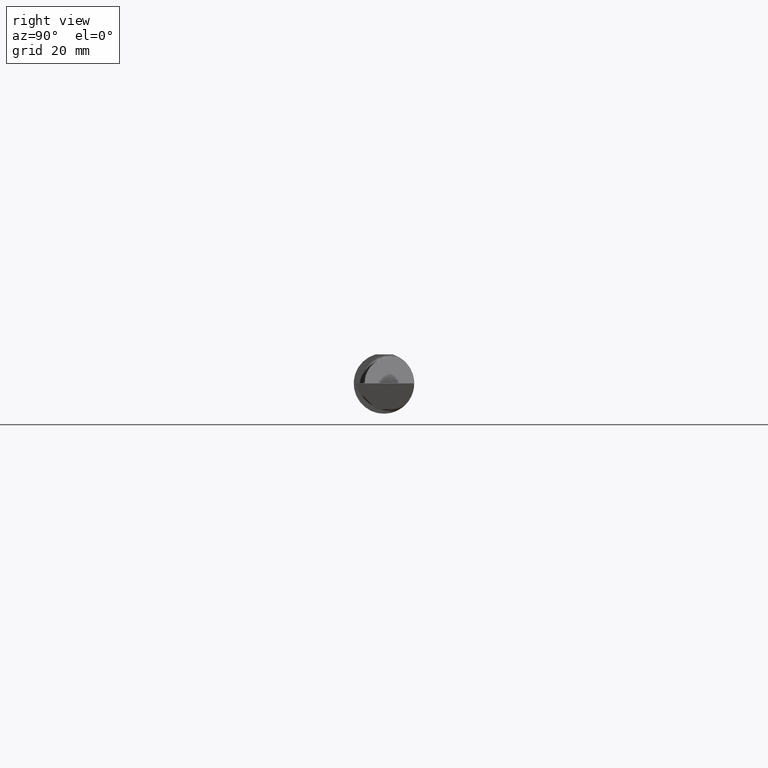
[diagram: clean part render]
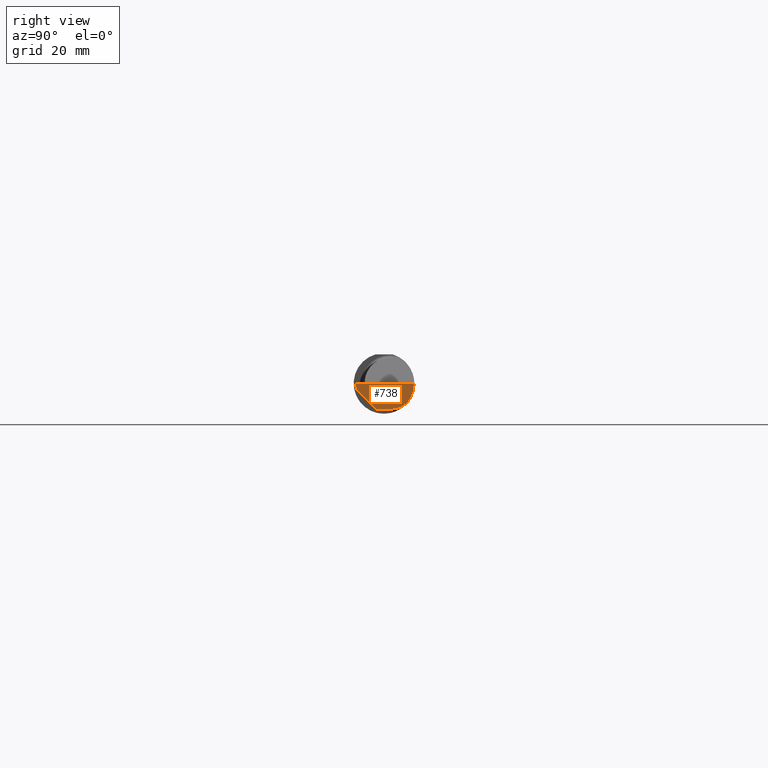
[diagram: same view with one face highlighted and labeled with its STEP entity id]
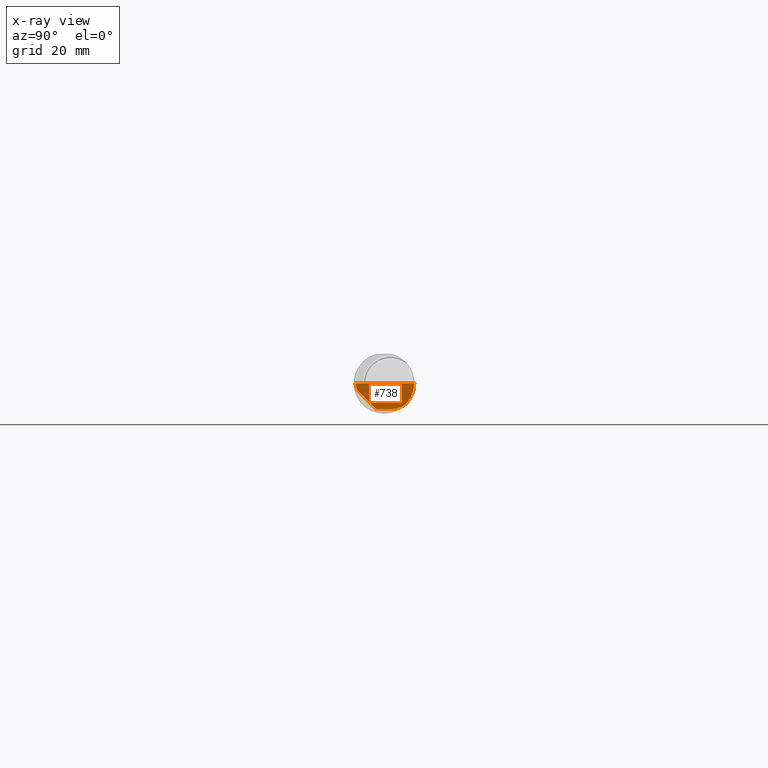
[diagram: x-ray of the same camera — body ghosted, the highlighted face saturated]
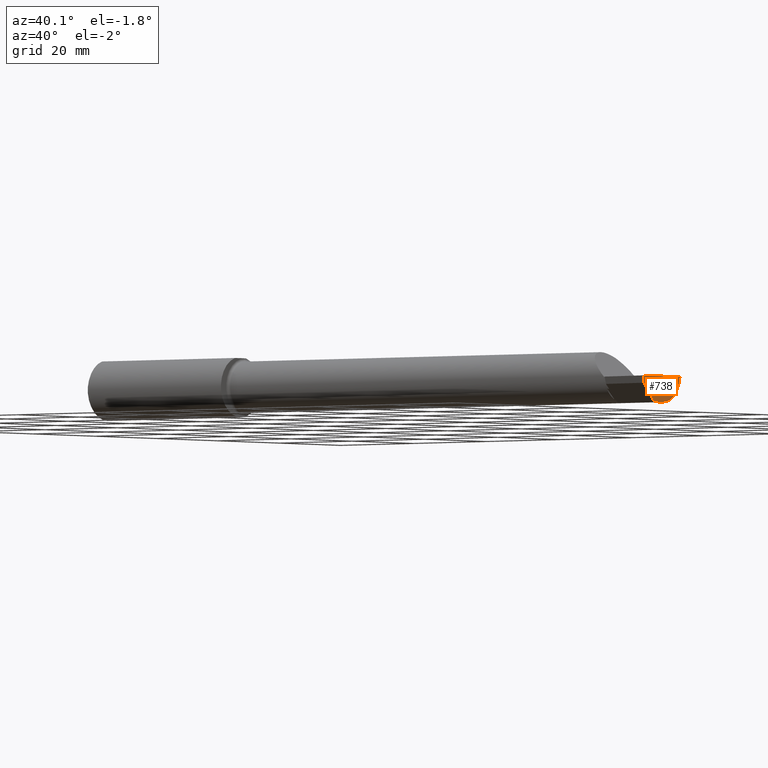
[diagram: same view with one face highlighted and labeled with its STEP entity id]
A machine part, right view. The second image highlights one B-rep face of the part: STEP entity #738.
The next image is the same camera in x-ray: the body ghosted, the highlighted face saturated — about 0% of this face is hidden behind the body in this view.
A second angle (auxiliary view) of the same face is appended — the face is thin or edge-on in the first view.
In plain terms, the highlighted planar face has unit normal (0.9927, 0.0266, -0.1175).
Its self-contained STEP definition (entity closure, byte-faithful):
#12 = PLANE ( 'NONE',  #749 ) ;
#26 = CARTESIAN_POINT ( 'NONE',  ( 5.970126340504450013, -0.06507190623553234243, -0.2131499999999999506 ) ) ;
#34 = CARTESIAN_POINT ( 'NONE',  ( 5.968970726278977956, 0.1868028301886783815, -0.1659208399614098550 ) ) ;
#41 = CARTESIAN_POINT ( 'NONE',  ( 5.966986964385321279, 0.05211560253549542970, -0.2131499999999999784 ) ) ;
#46 = LINE ( 'NONE', #269, #340 ) ;
#58 = EDGE_LOOP ( 'NONE', ( #290, #754, #400, #645, #366, #545 ) ) ;
#67 = DIRECTION ( 'NONE',  ( 0.9927123040216839778, 0.02659410830638207074, -0.1175373763844857200 ) ) ;
#79 = CARTESIAN_POINT ( 'NONE',  ( 5.966963271960172399, 0.05299999999999996381, -0.2131499999999999784 ) ) ;
#85 = VERTEX_POINT ( 'NONE', #26 ) ;
#128 = VECTOR ( 'NONE', #608, 39.37007874015748854 ) ;
#160 = EDGE_CURVE ( 'NONE', #572, #225, #242, .T. ) ;
#174 = FACE_OUTER_BOUND ( 'NONE', #58, .T. ) ;
#181 = CARTESIAN_POINT ( 'NONE',  ( 5.965646124279056828, 0.1021668565906563991, -0.2131500000000002837 ) ) ;
#189 = DIRECTION ( 'NONE',  ( 0.02677973311239231768, -0.9996413586354002678, -2.916664445122107707E-18 ) ) ;
#225 = VERTEX_POINT ( 'NONE', #34 ) ;
#242 =( BOUNDED_CURVE ( )  B_SPLINE_CURVE ( 3, ( #368, #181, #428, #416 ),
 .UNSPECIFIED., .F., .F. ) 
 B_SPLINE_CURVE_WITH_KNOTS ( ( 4, 4 ),
 ( 6.060671081087573242, 6.739317872789805541 ),
 .UNSPECIFIED. ) 
 CURVE ( )  GEOMETRIC_REPRESENTATION_ITEM ( )  RATIONAL_B_SPLINE_CURVE ( ( 1.000000000000000000, 0.9619867256453030757, 0.9619867256453030757, 1.000000000000000000 ) ) 
 REPRESENTATION_ITEM ( '' )  );
#258 = LINE ( 'NONE', #436, #128 ) ;
#265 = CARTESIAN_POINT ( 'NONE',  ( 5.986926801651457630, 0.2498499999999998222, -2.376133405444120600E-16 ) ) ;
#269 = CARTESIAN_POINT ( 'NONE',  ( 5.984159346317754036, -0.1618214701366293695, -0.1165188729350217500 ) ) ;
#290 = ORIENTED_EDGE ( 'NONE', *, *, #465, .T. ) ;
#308 = VECTOR ( 'NONE', #566, 39.37007874015748854 ) ;
#327 = CARTESIAN_POINT ( 'NONE',  ( 6.000000000000001776, -0.2381500000000003059, 4.268512490100411402E-16 ) ) ;
#329 = VECTOR ( 'NONE', #189, 39.37007874015748854 ) ;
#338 = CARTESIAN_POINT ( 'NONE',  ( 5.979603243914508148, 0.2498499999999999610, -0.06185424669427579819 ) ) ;
#340 = VECTOR ( 'NONE', #596, 39.37007874015748143 ) ;
#354 =( BOUNDED_CURVE ( )  B_SPLINE_CURVE ( 3, ( #389, #634, #338, #576 ),
 .UNSPECIFIED., .F., .T. ) 
 B_SPLINE_CURVE_WITH_KNOTS ( ( 4, 4 ),
 ( 0.6220170400679957412, 1.348282100702882680 ),
 .UNSPECIFIED. ) 
 CURVE ( )  GEOMETRIC_REPRESENTATION_ITEM ( )  RATIONAL_B_SPLINE_CURVE ( ( 1.000000000000000000, 0.9565258159410989780, 0.9565258159410989780, 1.000000000000000000 ) ) 
 REPRESENTATION_ITEM ( '' )  );
#356 = VERTEX_POINT ( 'NONE', #630 ) ;
#366 = ORIENTED_EDGE ( 'NONE', *, *, #710, .T. ) ;
#368 = CARTESIAN_POINT ( 'NONE',  ( 5.966963271960172399, 0.05299999999999996381, -0.2131499999999999784 ) ) ;
#389 = CARTESIAN_POINT ( 'NONE',  ( 5.968970726278977956, 0.1868028301886783815, -0.1659208399614098550 ) ) ;
#400 = ORIENTED_EDGE ( 'NONE', *, *, #552, .T. ) ;
#416 = CARTESIAN_POINT ( 'NONE',  ( 5.968970726278977956, 0.1868028301886783815, -0.1659208399614098550 ) ) ;
#428 = CARTESIAN_POINT ( 'NONE',  ( 5.966341717494392682, 0.1485302233682050665, -0.1967848538638763134 ) ) ;
#436 = CARTESIAN_POINT ( 'NONE',  ( 5.983858394183930507, -0.1964039090909500962, -0.1268853457175436461 ) ) ;
#459 = LINE ( 'NONE', #464, #329 ) ;
#464 = CARTESIAN_POINT ( 'NONE',  ( 6.000317226026190554, -0.2499915017238489856, -2.390717335207336421E-16 ) ) ;
#465 = EDGE_CURVE ( 'NONE', #225, #716, #354, .T. ) ;
#475 = DIRECTION ( 'NONE',  ( -0.1175789623991730370, 0.000000000000000000, -0.9930635365378861490 ) ) ;
#492 = EDGE_CURVE ( 'NONE', #716, #704, #459, .T. ) ;
#545 = ORIENTED_EDGE ( 'NONE', *, *, #160, .T. ) ;
#552 = EDGE_CURVE ( 'NONE', #704, #356, #258, .T. ) ;
#563 = LINE ( 'NONE', #41, #308 ) ;
#566 = DIRECTION ( 'NONE',  ( -0.02677973311239235238, 0.9996413586354002678, -2.566230189353009768E-16 ) ) ;
#572 = VERTEX_POINT ( 'NONE', #79 ) ;
#576 = CARTESIAN_POINT ( 'NONE',  ( 5.986926801651457630, 0.2498499999999998222, -2.376133405444120600E-16 ) ) ;
#596 = DIRECTION ( 'NONE',  ( -0.1020886612874981891, 0.7038430390621323030, -0.7029814233678641777 ) ) ;
#608 = DIRECTION ( 'NONE',  ( -0.1199690778467078500, 0.3102690083707266844, -0.9430485474275736024 ) ) ;
#630 = CARTESIAN_POINT ( 'NONE',  ( 5.992367153641839472, -0.2184096159518783831, -0.06000000000000024758 ) ) ;
#634 = CARTESIAN_POINT ( 'NONE',  ( 5.973345850378710686, 0.2278791102234770383, -0.1196748990301337856 ) ) ;
#645 = ORIENTED_EDGE ( 'NONE', *, *, #732, .T. ) ;
#654 = CARTESIAN_POINT ( 'NONE',  ( 6.028162759442342811, -0.2374125321900706909, 0.2380275191859495820 ) ) ;
#704 = VERTEX_POINT ( 'NONE', #327 ) ;
#710 = EDGE_CURVE ( 'NONE', #85, #572, #563, .T. ) ;
#716 = VERTEX_POINT ( 'NONE', #265 ) ;
#732 = EDGE_CURVE ( 'NONE', #356, #85, #46, .T. ) ;
#738 = ADVANCED_FACE ( 'NONE', ( #174 ), #12, .T. ) ;
#749 = AXIS2_PLACEMENT_3D ( 'NONE', #654, #67, #475 ) ;
#754 = ORIENTED_EDGE ( 'NONE', *, *, #492, .T. ) ;